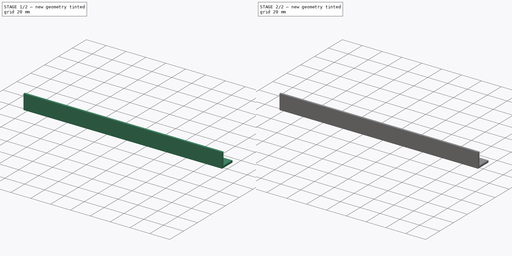
[diagram: build sequence overview — one tinted view per stage of 2, left to right]
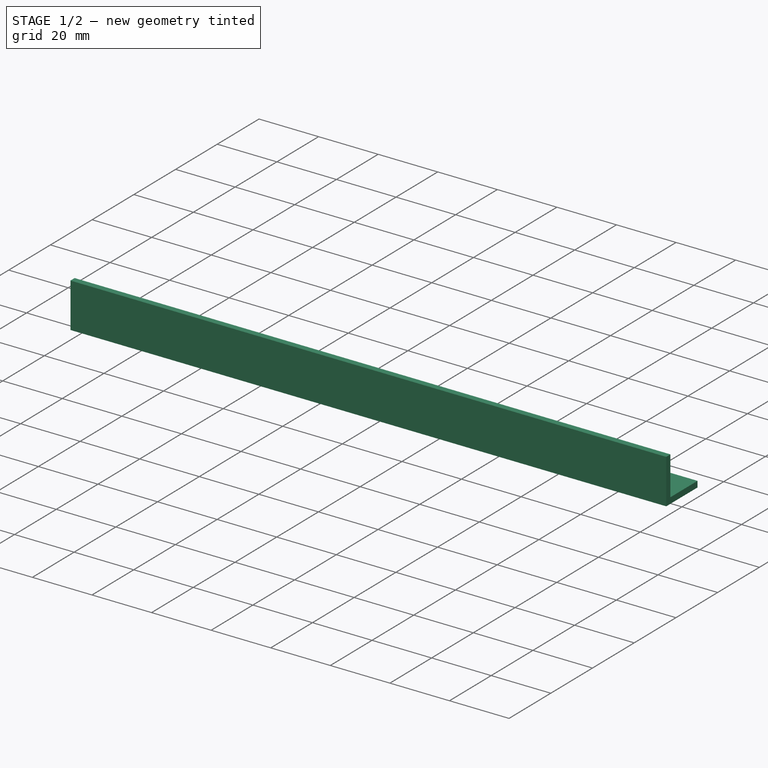
[diagram: stage 1 of 2 — iso view after this stage's code; geometry added in this stage tinted green]
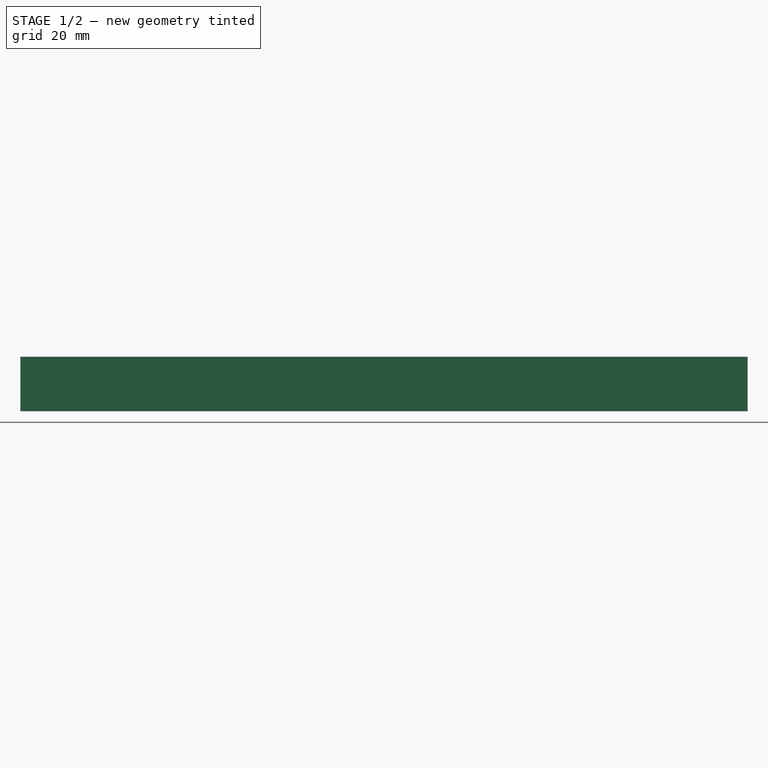
[diagram: stage 1 of 2 — front view after this stage's code; geometry added in this stage tinted green]
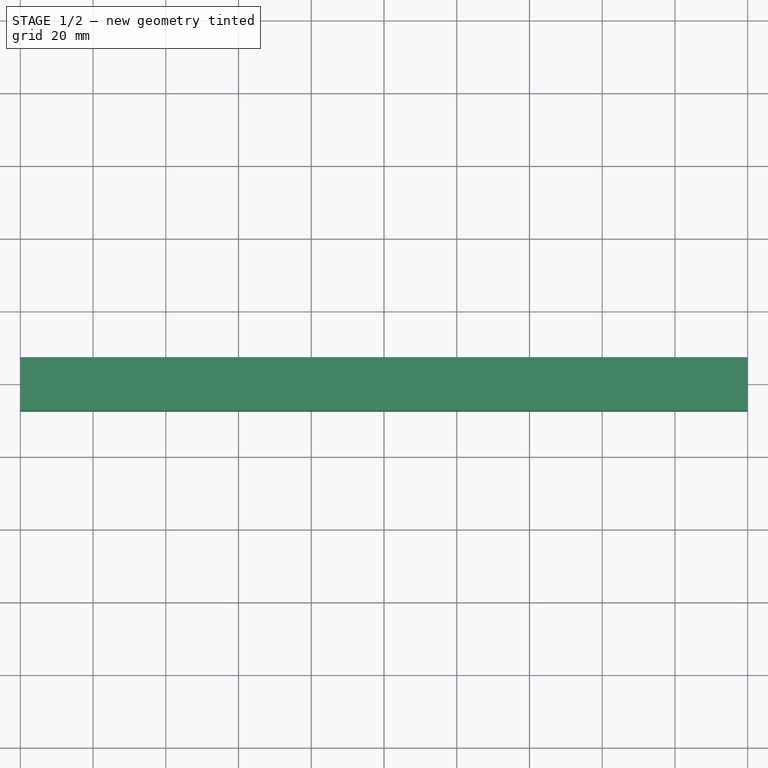
[diagram: stage 1 of 2 — top view after this stage's code; geometry added in this stage tinted green]
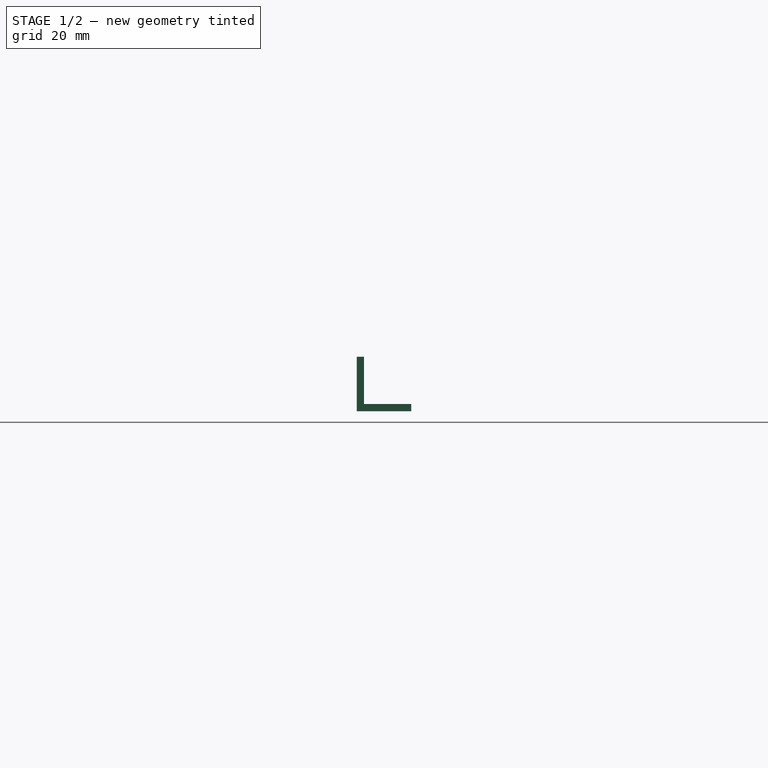
[diagram: stage 1 of 2 — right view after this stage's code; geometry added in this stage tinted green]
FCSTD DOCUMENT  (FreeCAD 0.17R11311 (Git))
Label: AluWinkelGebohrt
License: All rights reserved
LicenseURL: http://en.wikipedia.org/wiki/All_rights_reserved
objects: Sketcher::SketchObject×3, PartDesign::Pad×2, PartDesign::Pocket×2, PartDesign::Body×1, App::Part×1
note: 12 computed .brp shape members not serialized (recipe doc carries the construction recipe); baked Part::Feature solids carry a one-line shape summary decoded from their .brp

FEATURE [Sketcher::SketchObject] Sketch
  MapMode = 5
  Support = -> [XY_Plane001]
  sketch-geometry (4):
    g0: LineSegment StartX=-100 StartY=7.5 StartZ=0 EndX=100 EndY=7.5 EndZ=0
    g1: LineSegment StartX=100 StartY=7.5 StartZ=0 EndX=100 EndY=-7.5 EndZ=0
    g2: LineSegment StartX=100 StartY=-7.5 StartZ=0 EndX=-100 EndY=-7.5 EndZ=0
    g3: LineSegment StartX=-100 StartY=-7.5 StartZ=0 EndX=-100 EndY=7.5 EndZ=0
  constraints (12):
    c: Coincident(g0,g1)
    c: Coincident(g1,g2)
    c: Coincident(g2,g3)
    c: Coincident(g3,g0)
    c: Horizontal(g0)
    c: Horizontal(g2)
    c: Vertical(g1)
    c: Vertical(g3)
    c: Symmetric(g0,g0,g-2)
    c: Symmetric(g0,g2,g-1)
    c: DistanceY(g3,g3) = 15
    c: DistanceX(g0,g0) = 200
FEATURE [PartDesign::Pad] Pad
  Length = 15
  Length2 = 100
  Profile = -> Sketch
  Type = 0
FEATURE [Sketcher::SketchObject] Sketch001
  ExternalGeometry = -> [Pad]
  MapMode = 5
  Placement = pos=(0,0,15) rot=(0,0,1;0rad)
  Support = -> [Pad]
  sketch-geometry (4):
    g0: LineSegment StartX=-100 StartY=7.5 StartZ=0 EndX=100 EndY=7.5 EndZ=0
    g1: LineSegment StartX=100 StartY=7.5 StartZ=0 EndX=100 EndY=-5.5 EndZ=0
    g2: LineSegment StartX=100 StartY=-5.5 StartZ=0 EndX=-100 EndY=-5.5 EndZ=0
    g3: LineSegment StartX=-100 StartY=-5.5 StartZ=0 EndX=-100 EndY=7.5 EndZ=0
  constraints (11):
    c: Coincident(g0,g1)
    c: Coincident(g1,g2)
    c: Coincident(g2,g3)
    c: Coincident(g3,g0)
    c: Horizontal(g0)
    c: Horizontal(g2)
    c: Vertical(g1)
    c: Vertical(g3)
    c: Coincident(g0,g-3)
    c: Equal(g2,g-4)
    c: DistanceY(g3,g3) = 13
FEATURE [PartDesign::Pocket] Pocket
  BaseFeature = -> Pad
  Length = 13
  Profile = -> Sketch001
  Type = 0
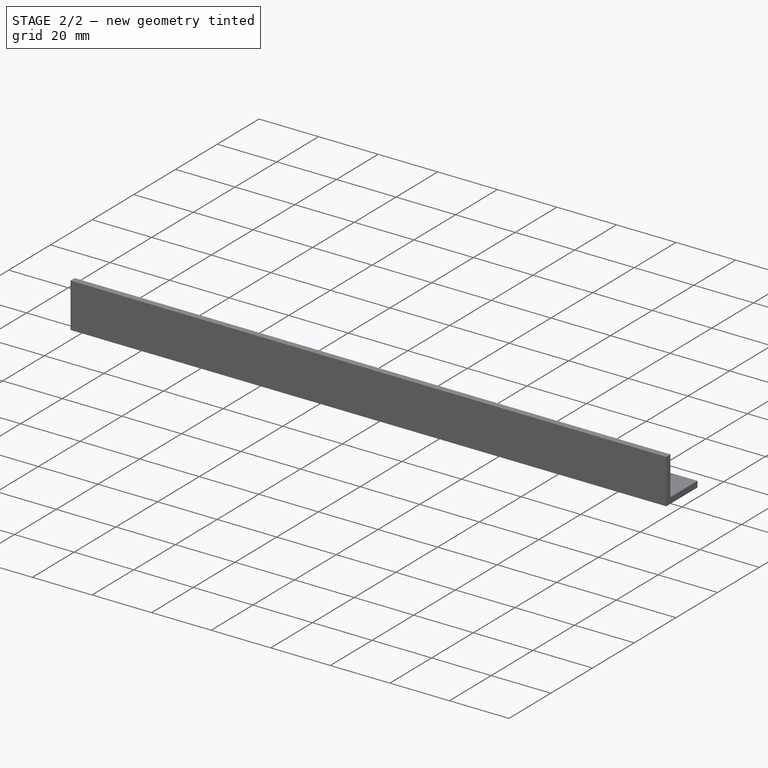
[diagram: stage 2 of 2 — iso view after this stage's code; geometry added in this stage tinted green]
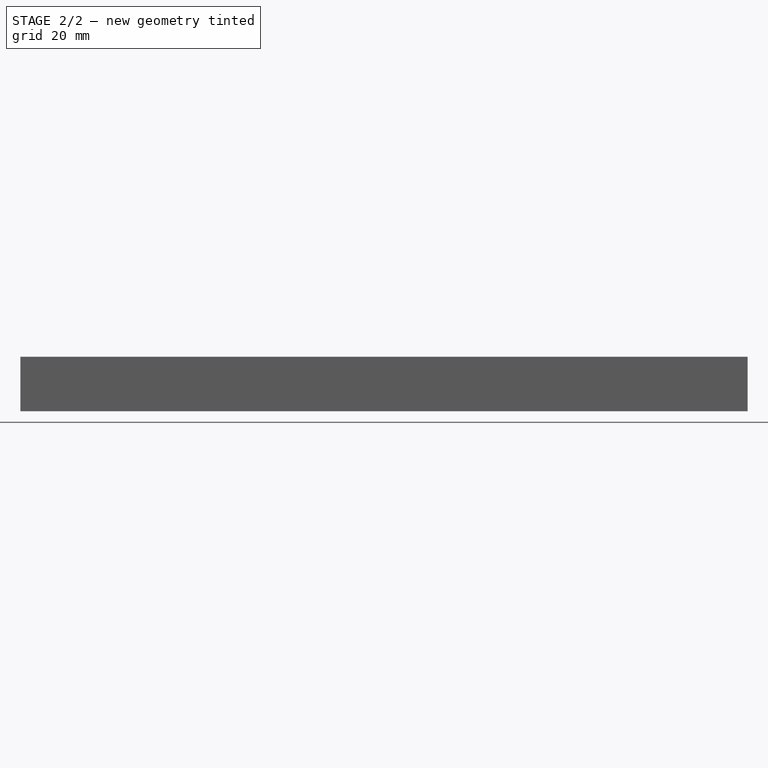
[diagram: stage 2 of 2 — front view after this stage's code; geometry added in this stage tinted green]
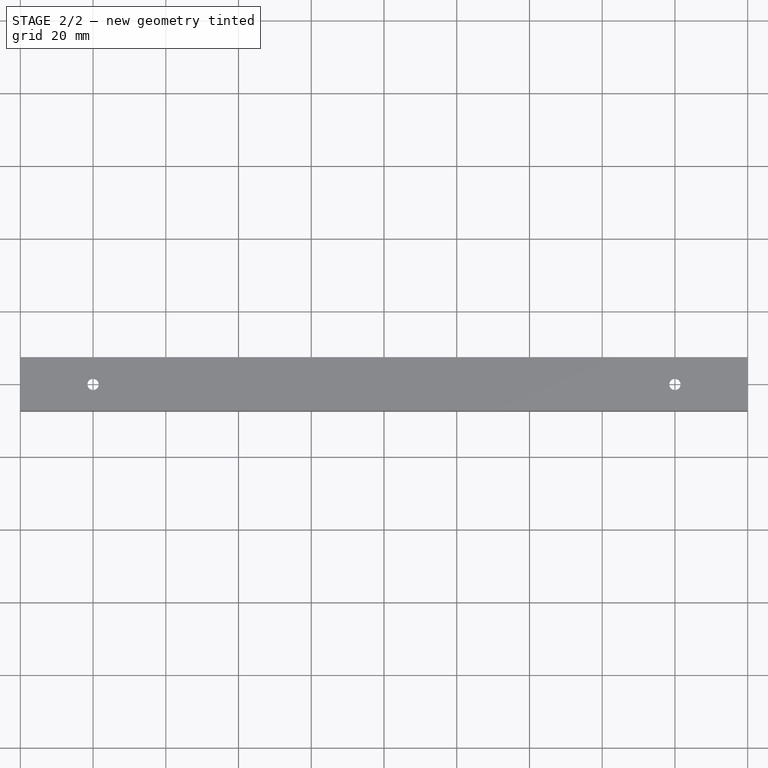
[diagram: stage 2 of 2 — top view after this stage's code; geometry added in this stage tinted green]
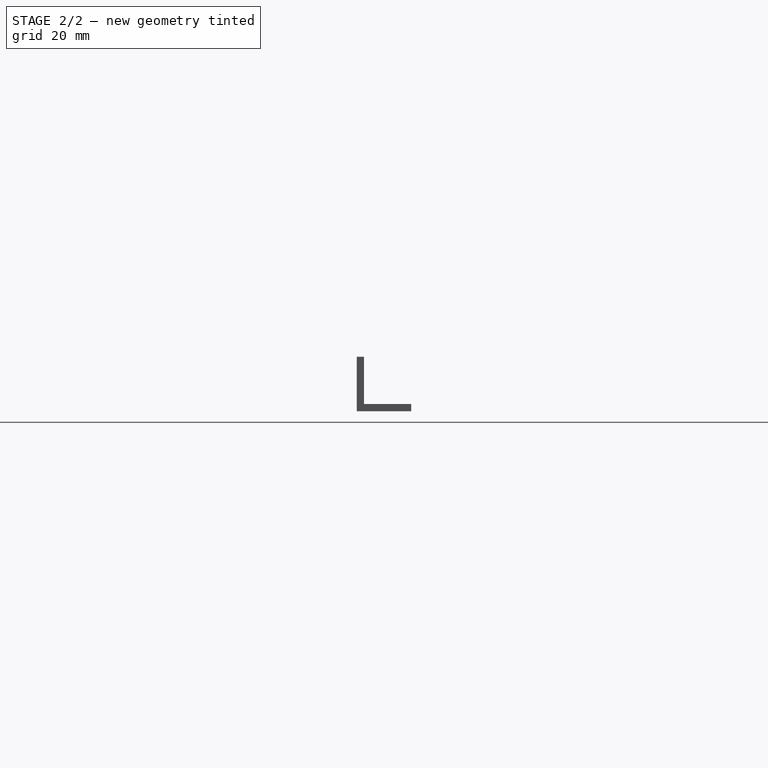
[diagram: stage 2 of 2 — right view after this stage's code; geometry added in this stage tinted green]
FEATURE [Sketcher::SketchObject] Sketch002  label="Bohrlöcher"
  ExternalGeometry = -> [Pocket]
  MapMode = 5
  Placement = pos=(0,0,0) rot=(1,0,0;3.14159rad)
  Support = -> [Pocket]
  sketch-geometry (4):
    g0: Circle CenterX=-80 CenterY=0 CenterZ=0 NormalX=0 NormalY=0 NormalZ=1 Radius=1.55
    g1: GeomPoint X=-100 Y=0 Z=0
    g2: Circle CenterX=80 CenterY=0 CenterZ=0 NormalX=0 NormalY=0 NormalZ=1 Radius=1.55
    g3: GeomPoint X=100 Y=0 Z=0
  constraints (10):
    c: PointOnObject(g1,g-1)
    c: PointOnObject(g1,g-3)
    c: DistanceX(g1,g0) = 20
    c: PointOnObject(g0,g-1)
    c: Radius(g0) = 1.55
    c: PointOnObject(g3,g-1)
    c: PointOnObject(g3,g-4)
    c: DistanceX(g2,g3) = 20
    c: PointOnObject(g2,g-1)
    c: Radius(g2) = 1.55
FEATURE [PartDesign::Pad] Pad001
  BaseFeature = -> Pocket
  Length = 10
  Length2 = 100
  Profile = -> Sketch002
  Type = 0
FEATURE [PartDesign::Pocket] Pocket001  label="AluWinkel"
  BaseFeature = -> Pad001
  Length = 2
  Profile = -> Sketch002
  Type = 0
FEATURE [PartDesign::Body] PocketBody
  Group = -> [Sketch,Pad,Sketch001,Pocket,Sketch002,Pad001,Pocket001]
  Origin = -> PocketBodyOrigin
  Tip = -> Pocket001
FEATURE [App::Part] Part
  Group = -> [PocketBody]
  License = CC BY 3.0
  LicenseURL = http://creativecommons.org/licenses/by/3.0/
  Origin = -> PartOrigin
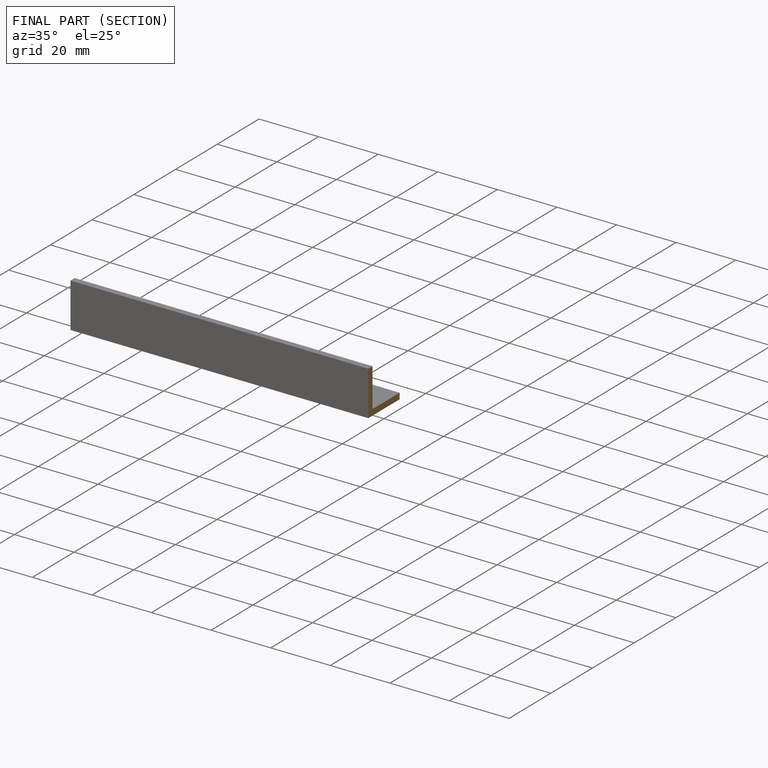
[diagram: finished part — half-section view (interior)]
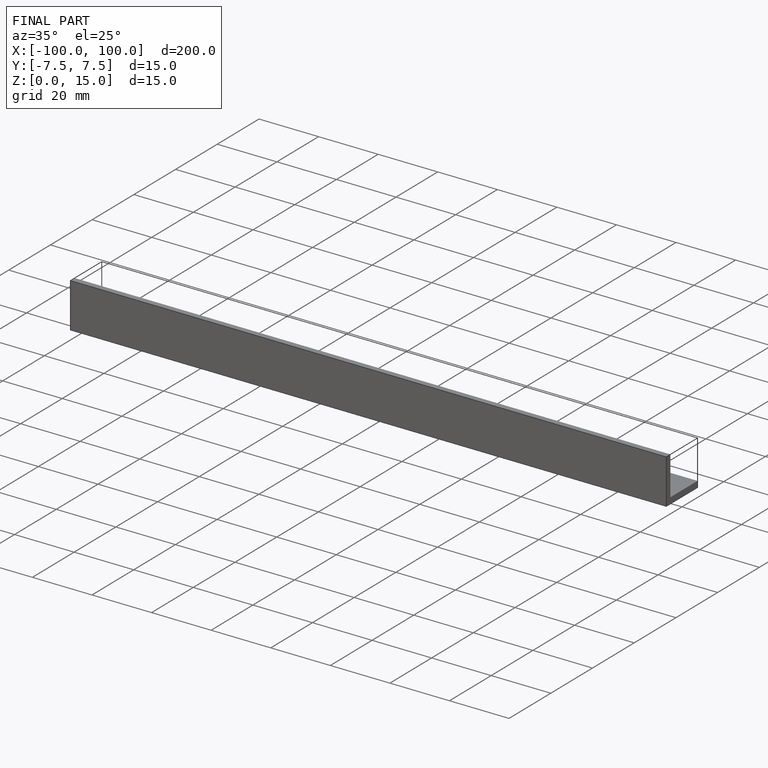
[diagram: finished part — iso view with bounding-box wireframe]
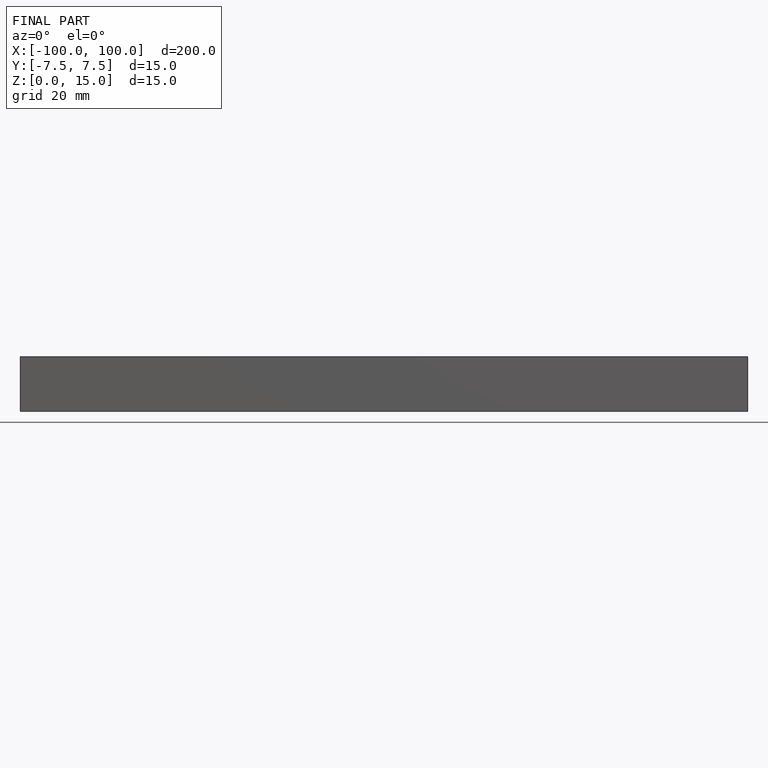
[diagram: finished part — front view with bounding-box wireframe]
